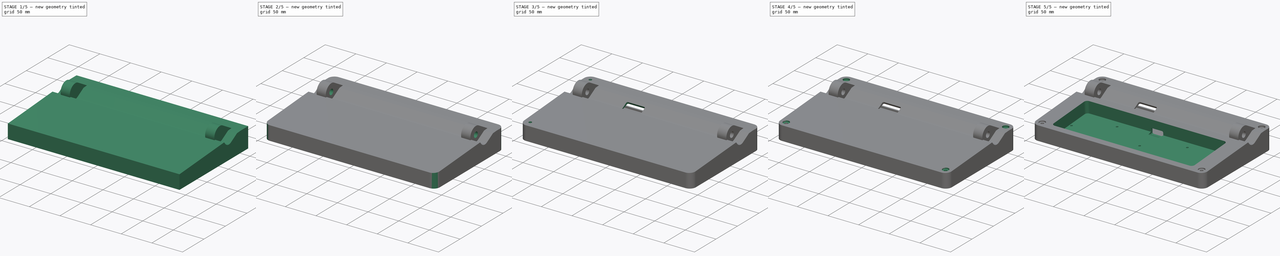
[diagram: build sequence overview — one tinted view per stage of 5, left to right]
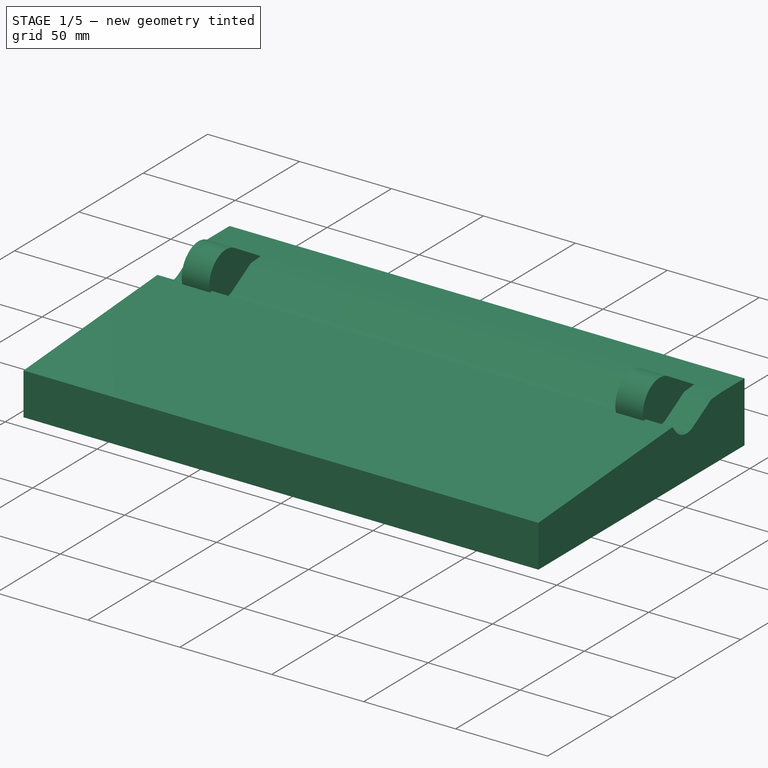
[diagram: stage 1 of 5 — iso view after this stage's code; geometry added in this stage tinted green]
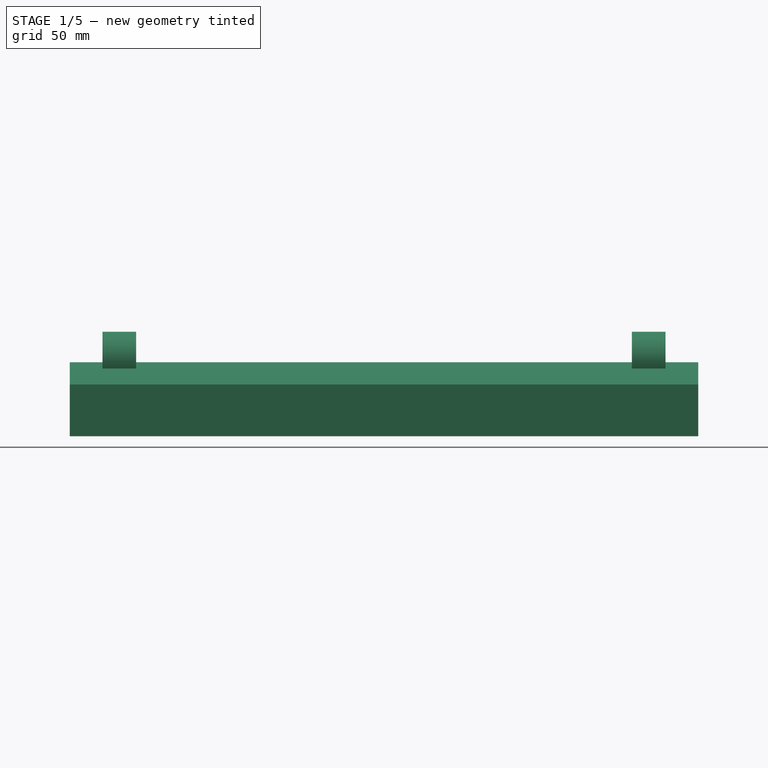
[diagram: stage 1 of 5 — front view after this stage's code; geometry added in this stage tinted green]
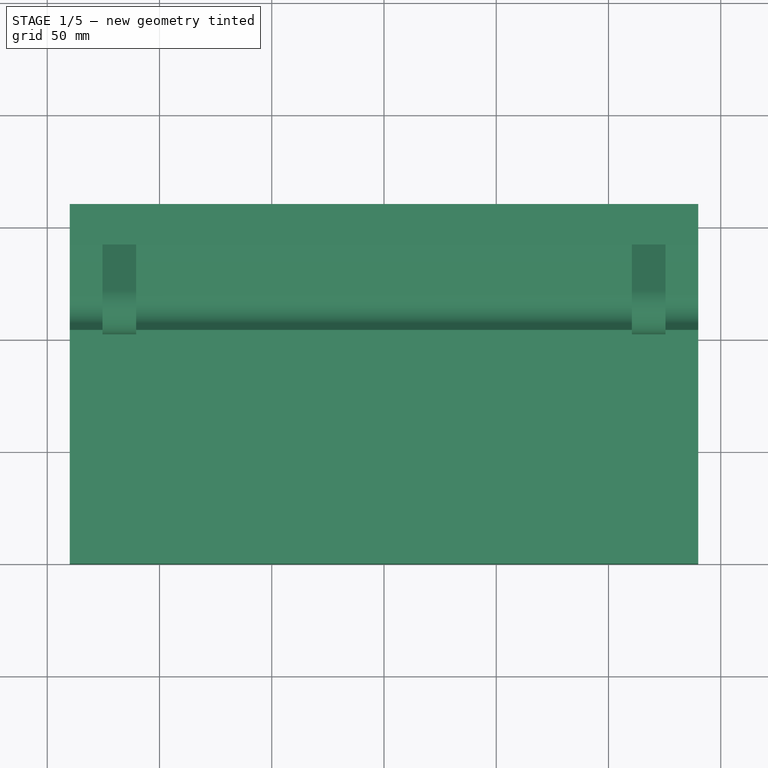
[diagram: stage 1 of 5 — top view after this stage's code; geometry added in this stage tinted green]
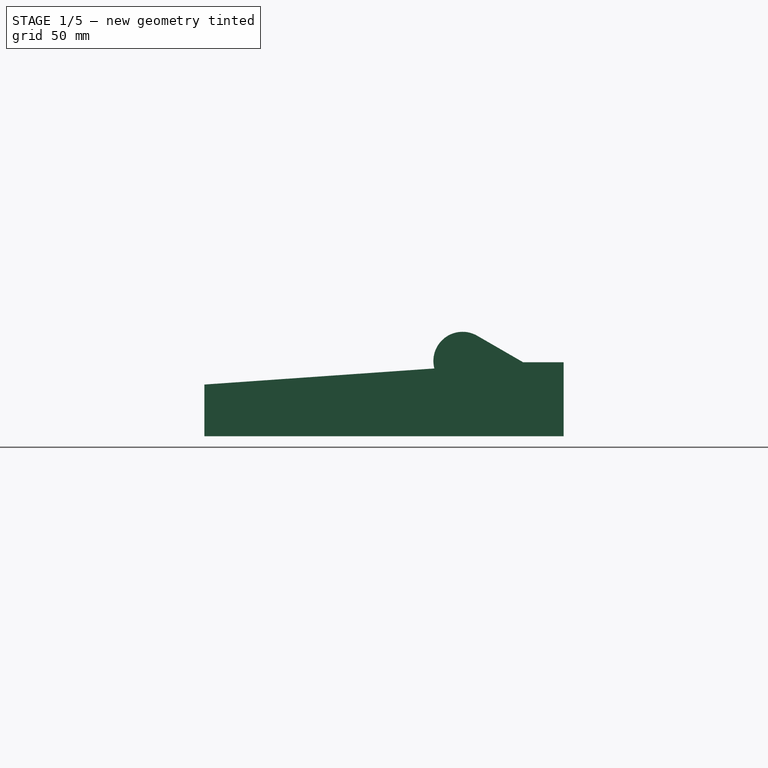
[diagram: stage 1 of 5 — right view after this stage's code; geometry added in this stage tinted green]
FCSTD DOCUMENT  (FreeCAD 1.0R39319 (Git))
Label: BottomEnclosure_base
License: All rights reserved
LicenseURL: https://en.wikipedia.org/wiki/All_rights_reserved
objects: Sketcher::SketchObject×13, PartDesign::SubShapeBinder×13, PartDesign::Pocket×13, PartDesign::Mirrored×3, PartDesign::Pad×2, PartDesign::Fillet×2, PartDesign::Body×2, App::Link×1, PartDesign::Boolean×1, PartDesign::Plane×1, PartDesign::Hole×1
note: 104 computed .brp shape members not serialized (recipe doc carries the construction recipe); baked Part::Feature solids carry a one-line shape summary decoded from their .brp
EXTERNAL_REF file=Spec.FCStd obj=Spreadsheet

FEATURE [App::Link] Link  label="Vars"
  LinkedObject = -> <external Spec.FCStd>#Spreadsheet
FEATURE [Sketcher::SketchObject] Sketch008
  ArcFitTolerance = 1e-06
  AttachmentSupport = -> [YZ_Plane002]
  FullyConstrained = true
  MakeInternals = false
  MapMode = 5
  Placement = pos=(0,0,0) rot=(0.57735,0.57735,0.57735;2.0944rad)
  expr: Constraints[15] = <<Vars>>.hood_angle
  expr: Constraints[16] = <<Vars>>.bottom_enclosure_height
  expr: Constraints[8] = <<Vars>>.top_enclosure_height
  expr: Constraints[9] = <<Vars>>.bottom_enclosure_depth
  sketch-geometry (12):
    g0: LineSegment StartX=-100 StartY=0 StartZ=0 EndX=-100 EndY=23.0073 EndZ=0
    g1: LineSegment StartX=-100 StartY=23.0073 StartZ=0 EndX=0 EndY=30 EndZ=0
    g2: LineSegment StartX=60 StartY=32.9354 StartZ=0 EndX=60 EndY=0 EndZ=0
    g3: LineSegment StartX=60 StartY=0 StartZ=0 EndX=-100 EndY=0 EndZ=0
    g4: LineSegment [constr] StartX=0 StartY=30 StartZ=0 EndX=-100 EndY=30 EndZ=0
    g5: LineSegment [constr] StartX=-100 StartY=30 StartZ=0 EndX=-100 EndY=23.0073 EndZ=0
    g6: LineSegment [constr] StartX=41.9779 StartY=32.9354 StartZ=0 EndX=21.5 EndY=44.7583 EndZ=0
    g7: LineSegment StartX=0 StartY=30 StartZ=0 EndX=41.9779 EndY=32.9354 EndZ=0
    g8: LineSegment StartX=41.9779 StartY=32.9354 StartZ=0 EndX=60 EndY=32.9354 EndZ=0
    g9: Circle CenterX=15 CenterY=33.5 CenterZ=0 NormalX=0 NormalY=0 NormalZ=1 AngleXU=0 Radius=4.5
    g10: Circle CenterX=15 CenterY=33.5 CenterZ=0 NormalX=0 NormalY=0 NormalZ=1 AngleXU=0 Radius=10
    g11: LineSegment [constr] StartX=15 StartY=33.5 StartZ=0 EndX=21.5 EndY=44.7583 EndZ=0
  constraints (33):
    c: PointOnObject(g0,g-1)
    c: Vertical(g0)
    c: Coincident(g0,g1)
    c: PointOnObject(g1,g-2)
    c: PointOnObject(g2,g-1)
    c: Vertical(g2)
    c: Coincident(g2,g3)
    c: Coincident(g3,g0)
    c: DistanceX(g0,g-1) = 100
    c: DistanceY(g0,g1) = 30
    c: Coincident(g1,g4)
    c: Horizontal(g4)
    c: Coincident(g4,g5)
    c: Coincident(g5,g0)
    c: Vertical(g5)
    c: Angle(g4,g1) = 0.0698132
    c: DistanceX(g0,g2) = 160
    c: Angle(g6,g-1) = 0.523599
    c: Coincident(g7,g1)
    c: Coincident(g7,g6)
    c: Coincident(g8,g6)
    c: Coincident(g8,g2)
    c: Horizontal(g8)
    c: Parallel(g1,g7)
    c: DistanceX(g-1,g9) = 15
    c: Diameter(g9) = 9
    c: DistanceY(g-1,g9) = 33.5
    c: Coincident(g10,g9)
    c: Diameter(g10) = 20
    c: Coincident(g11,g9)
    c: Coincident(g6,g11)
    c: Perpendicular(g6,g11)
    c: Distance(g11) = 13
FEATURE [Sketcher::SketchObject] Sketch
  ArcFitTolerance = 1e-06
  AttachmentSupport = -> [YZ_Plane002]
  ExternalGeometry = -> [Sketch008]
  FullyConstrained = true
  MakeInternals = false
  MapMode = 5
  Placement = pos=(0,0,0) rot=(0.57735,0.57735,0.57735;2.0944rad)
  sketch-geometry (6):
    g0: ArcOfCircle CenterX=15 CenterY=33.5 CenterZ=0 NormalX=0 NormalY=0 NormalZ=1 AngleXU=0 Radius=10.5 StartAngle=3.83972 EndAngle=5.23599
    g1: LineSegment StartX=3.99563 StartY=30.2794 StartZ=0 EndX=6.95653 EndY=26.7507 EndZ=0
    g2: LineSegment StartX=20.25 StartY=24.4067 StartZ=0 EndX=34.0635 EndY=32.382 EndZ=0
    g3: LineSegment [constr] StartX=6.95653 StartY=26.7507 StartZ=0 EndX=7.33956 EndY=27.0721 EndZ=0
    g4: LineSegment [constr] StartX=7.33956 StartY=27.0721 StartZ=0 EndX=15 EndY=33.5 EndZ=0
    g5: LineSegment StartX=3.99563 StartY=30.2794 StartZ=0 EndX=34.0635 EndY=32.382 EndZ=0
  constraints (15):
    c: Coincident(g0,g-3)
    c: PointOnObject(g1,g-5)
    c: Coincident(g3,g1)
    c: Coincident(g4,g0)
    c: PointOnObject(g2,g-5)
    c: Angle(g-1,g2) = 0.523599
    c: Tangent(g0,g1) = -1.5708
    c: Tangent(g0,g2) = -1.5708
    c: Coincident(g3,g4)
    c: PointOnObject(g3,g-4)
    c: Parallel(g3,g4)
    c: Coincident(g5,g1)
    c: Coincident(g5,g2)
    c: Angle(g-1,g4) = 0.698132
    c: Distance(g0,g3) = 0.5
FEATURE [Sketcher::SketchObject] Sketch012  label="Sketch013"
  ArcFitTolerance = 1e-06
  AttachmentSupport = -> [YZ_Plane002]
  ExternalGeometry = -> [Sketch,Sketch008]
  FullyConstrained = true
  MakeInternals = false
  MapMode = 5
  Placement = pos=(0,0,0) rot=(0.57735,0.57735,0.57735;2.0944rad)
  sketch-geometry (7):
    g0: ArcOfCircle CenterX=15 CenterY=33.5 CenterZ=0 NormalX=0 NormalY=0 NormalZ=1 AngleXU=0 Radius=13 StartAngle=1.0472 EndAngle=3.40062
    g1: LineSegment StartX=21.5 StartY=44.7583 StartZ=0 EndX=41.9779 EndY=32.9354 EndZ=0
    g2: LineSegment StartX=2.43368 StartY=30.1702 StartZ=0 EndX=3.99563 EndY=30.2794 EndZ=0
    g3: LineSegment StartX=34.0635 StartY=32.382 StartZ=0 EndX=41.9779 EndY=32.9354 EndZ=0
    g4: LineSegment StartX=3.99563 StartY=30.2794 StartZ=0 EndX=6.95653 EndY=26.7507 EndZ=0
    g5: LineSegment StartX=20.25 StartY=24.4067 StartZ=0 EndX=34.0635 EndY=32.382 EndZ=0
    g6: ArcOfCircle CenterX=15 CenterY=33.5 CenterZ=0 NormalX=0 NormalY=0 NormalZ=1 AngleXU=0 Radius=10.5 StartAngle=3.83972 EndAngle=5.23599
  constraints (16):
    c: Diameter(g0) = 26
    c: Coincident(g0,g-3)
    c: Coincident(g1,g-6)
    c: Tangent(g0,g1) = 1.5708
    c: PointOnObject(g0,g-6)
    c: Coincident(g2,g0)
    c: Coincident(g2,g-4)
    c: Coincident(g3,g-5)
    c: Coincident(g3,g1)
    c: Coincident(g4,g2)
    c: Coincident(g4,g-4)
    c: Coincident(g5,g-5)
    c: Coincident(g5,g3)
    c: Coincident(g6,g4)
    c: Coincident(g6,g5)
    c: Tangent(g6,g-3)
FEATURE [Sketcher::SketchObject] Sketch013  label="Sketch014"
  ArcFitTolerance = 1e-06
  AttachmentSupport = -> [XY_Plane002]
  FullyConstrained = true
  MakeInternals = false
  MapMode = 5
  expr: Constraints[10] = <<Vars>>.wire_hole_offset_x
  expr: Constraints[9] = <<Vars>>.wire_hole_width
  sketch-geometry (5):
    g0: LineSegment StartX=-55 StartY=5 StartZ=0 EndX=-25 EndY=5 EndZ=0
    g1: LineSegment StartX=-25 StartY=5 StartZ=0 EndX=-25 EndY=25 EndZ=0
    g2: LineSegment StartX=-25 StartY=25 StartZ=0 EndX=-55 EndY=25 EndZ=0
    g3: LineSegment StartX=-55 StartY=25 StartZ=0 EndX=-55 EndY=5 EndZ=0
    g4: GeomPoint [constr] X=-40 Y=15 Z=0
  constraints (13):
    c: Coincident(g0,g1)
    c: Coincident(g1,g2)
    c: Coincident(g2,g3)
    c: Coincident(g3,g0)
    c: Horizontal(g0)
    c: Horizontal(g2)
    c: Vertical(g1)
    c: Vertical(g3)
    c: Symmetric(g2,g0,g4)
    c: DistanceX(g2,g2) = 30
    c: DistanceX(g4,g-1) = 40
    c: DistanceY(g-1,g4) = 15
    c: DistanceY(g3,g3) = 20
FEATURE [PartDesign::SubShapeBinder] Binder014
  BindCopyOnChange = 0
  BindMode = 0
  ClaimChildren = false
  Context = -> Body002 [Binder014.]
  Fuse = false
  MakeFace = true
  OffsetFill = false
  OffsetIntersection = false
  OffsetJoinType = 0
  OffsetOpenResult = false
  PartialLoad = false
  Refine = true
  Relative = true
  Support = -> [Sketch008[Edge2,Edge3,Edge4,Edge5,Edge6,Edge1]]
  _Version = 2
FEATURE [PartDesign::Pad] Pad001
  Direction = (1,0,0)
  Length = 280
  Length2 = 10
  Midplane = true
  Profile = -> Binder014
  Refine = true
  Suppressed = false
  Type = 0
  expr: Length = <<Vars>>.top_enclosure_width
FEATURE [Sketcher::SketchObject] Sketch014  label="Sketch015"
  ArcFitTolerance = 1e-06
  AttachmentSupport = -> [YZ_Plane002]
  FullyConstrained = true
  MakeInternals = false
  MapMode = 5
  Placement = pos=(0,0,0) rot=(0.57735,0.57735,0.57735;2.0944rad)
FEATURE [PartDesign::Pocket] Pocket
  BaseFeature = -> Pad001
  Direction = (-1,0,0)
  Length = 5
  Length2 = 5
  Midplane = true
  Profile = -> Sketch
  ReferenceAxis = -> Sketch [N_Axis]
  Refine = true
  Suppressed = false
  Type = 1
FEATURE [PartDesign::SubShapeBinder] Binder
  BindCopyOnChange = 0
  BindMode = 0
  ClaimChildren = false
  Context = -> Body002 [Binder.]
  Fuse = false
  MakeFace = true
  OffsetFill = false
  OffsetIntersection = false
  OffsetJoinType = 0
  OffsetOpenResult = false
  PartialLoad = false
  Placement = pos=(110.4,0,0) rot=(0,0,1;0rad)
  Refine = true
  Relative = true
  Support = -> [Sketch012]
  _Version = 2
  expr: .Placement.Base.x = (<<Vars>>.top_enclosure_width - 32 * 2) / 2 + 2.4
FEATURE [PartDesign::Pad] Pad
  BaseFeature = -> Pocket
  Direction = (1,0,0)
  Length = 15
  Length2 = 10
  Profile = -> Binder
  Refine = true
  Suppressed = false
  Type = 0
FEATURE [PartDesign::Mirrored] Mirrored
  BaseFeature = -> Pad
  MirrorPlane = -> YZ_Plane002
  Originals = -> [Pad]
  Refine = true
  Suppressed = false
  TransformMode = 0
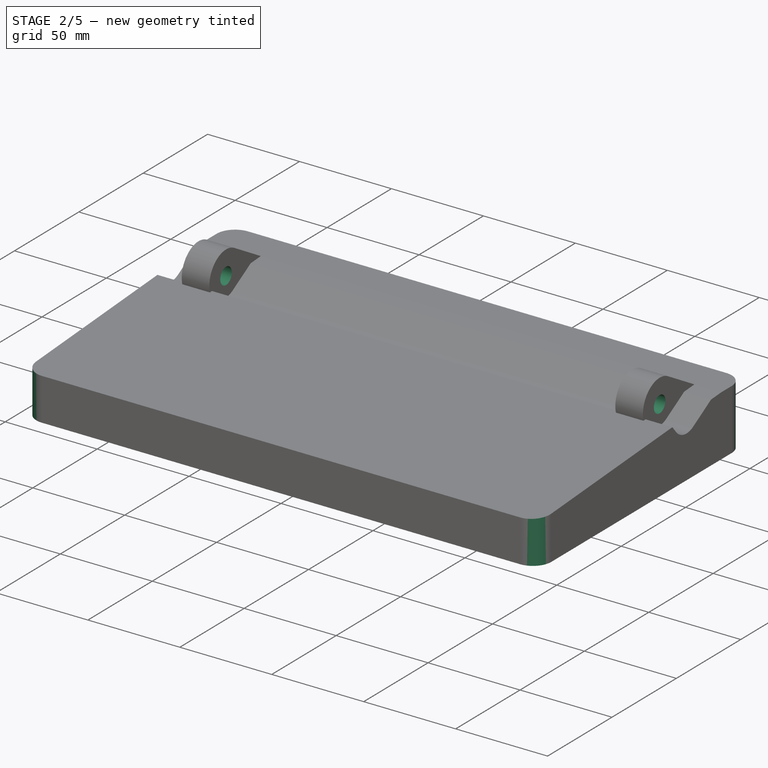
[diagram: stage 2 of 5 — iso view after this stage's code; geometry added in this stage tinted green]
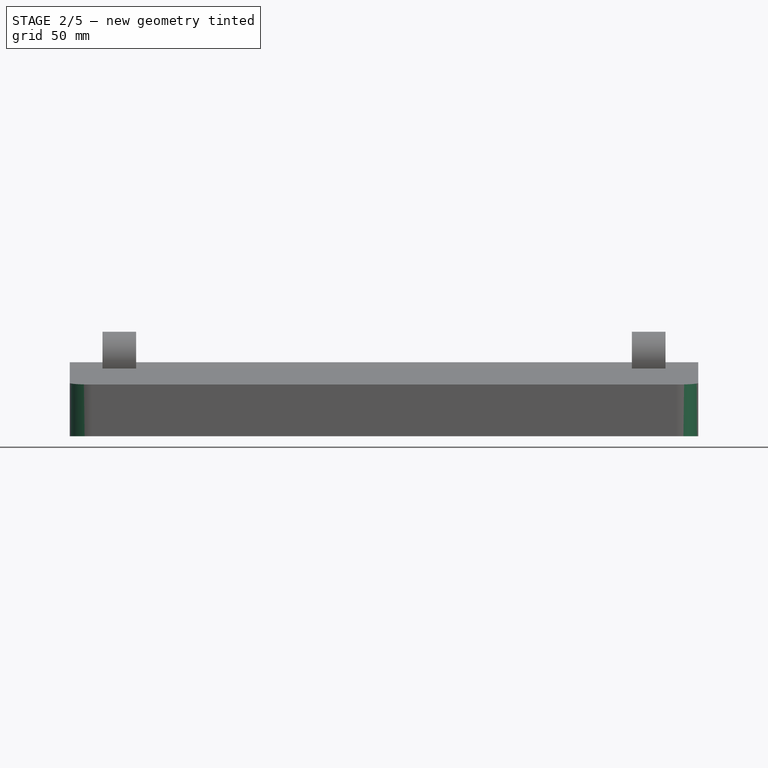
[diagram: stage 2 of 5 — front view after this stage's code; geometry added in this stage tinted green]
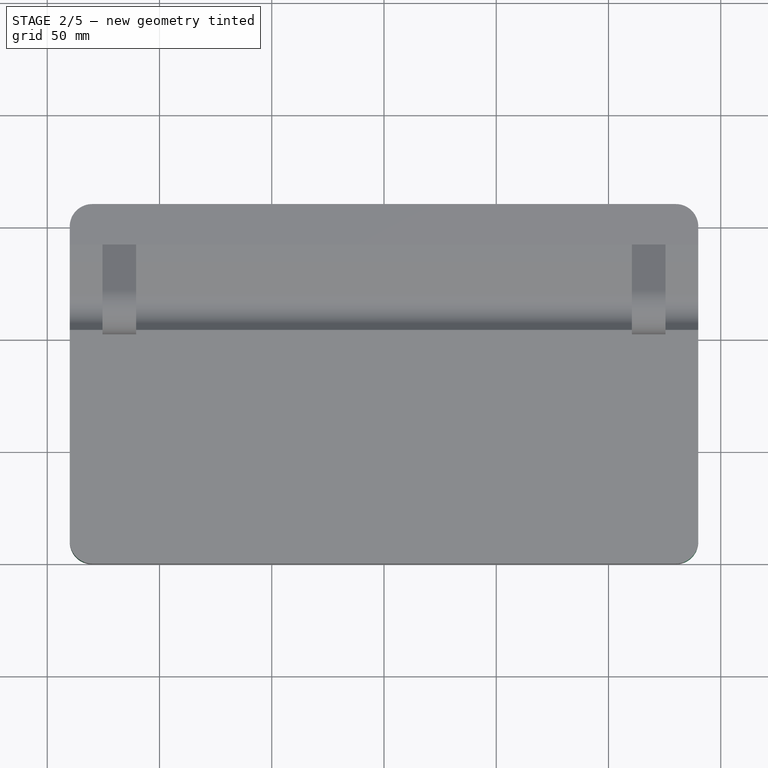
[diagram: stage 2 of 5 — top view after this stage's code; geometry added in this stage tinted green]
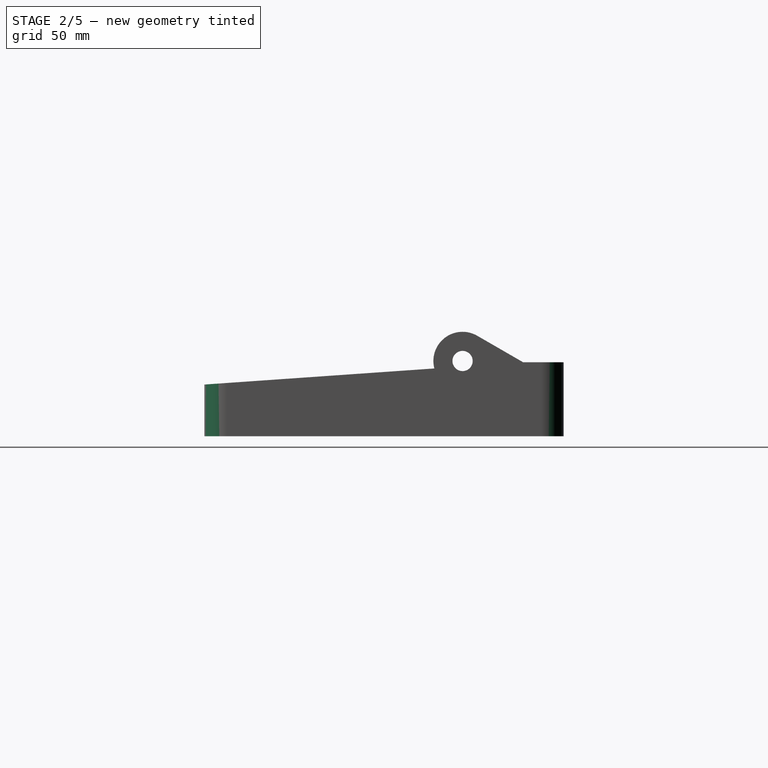
[diagram: stage 2 of 5 — right view after this stage's code; geometry added in this stage tinted green]
FEATURE [PartDesign::SubShapeBinder] Binder015
  BindCopyOnChange = 0
  BindMode = 0
  ClaimChildren = false
  Context = -> Body002 [Binder015.]
  Fuse = false
  MakeFace = true
  OffsetFill = false
  OffsetIntersection = false
  OffsetJoinType = 0
  OffsetOpenResult = false
  PartialLoad = false
  Refine = true
  Relative = true
  Support = -> [Sketch008[Edge7]]
  _Version = 2
FEATURE [PartDesign::Pocket] Pocket001
  BaseFeature = -> Mirrored
  Direction = (-1,0,0)
  Length = 5
  Length2 = 5
  Midplane = true
  Profile = -> Binder015
  Refine = true
  Suppressed = false
  Type = 1
FEATURE [Sketcher::SketchObject] Sketch015  label="Sketch016"
  ArcFitTolerance = 1e-06
  AttachmentSupport = -> [YZ_Plane002]
  ExternalGeometry = -> [Pocket001]
  FullyConstrained = true
  MakeInternals = false
  MapMode = 5
  Placement = pos=(0,0,0) rot=(0.57735,0.57735,0.57735;2.0944rad)
  expr: Constraints[10] = <<Vars>>.wall
  expr: Constraints[12] = <<Vars>>.wall
  expr: Constraints[16] = <<Vars>>.wall
  expr: Constraints[9] = <<Vars>>.wall
  sketch-geometry (6):
    g0: LineSegment StartX=-4.5 StartY=21.9067 StartZ=0 EndX=-4.5 EndY=2.5 EndZ=0
    g1: LineSegment StartX=-4.5 StartY=2.5 StartZ=0 EndX=57.5 EndY=2.5 EndZ=0
    g2: LineSegment StartX=57.5 StartY=2.5 StartZ=0 EndX=57.5 EndY=30.4354 EndZ=0
    g3: LineSegment StartX=20.25 StartY=21.9067 StartZ=0 EndX=-4.5 EndY=21.9067 EndZ=0
    g4: LineSegment StartX=57.5 StartY=30.4354 StartZ=0 EndX=41.9779 EndY=30.4354 EndZ=0
    g5: LineSegment StartX=41.9779 StartY=30.4354 StartZ=0 EndX=20.25 EndY=21.9067 EndZ=0
  constraints (18):
    c: Coincident(g0,g1)
    c: Coincident(g1,g2)
    c: Coincident(g2,g4)
    c: Coincident(g3,g0)
    c: Vertical(g0)
    c: Vertical(g2)
    c: Horizontal(g1)
    c: Coincident(g5,g3)
    c: Coincident(g4,g5)
    c: DistanceX(g2,g-7) = 2.5
    c: DistanceY(g2,g-7) = 2.5
    c: Horizontal(g4)
    c: DistanceY(g-8,g1) = 2.5
    c: Vertical(g4,g-6)
    c: Vertical(g3,g-5)
    c: Horizontal(g3)
    c: DistanceY(g3,g-5) = 2.5
    c: DistanceX(g1,g1) = 62
FEATURE [PartDesign::SubShapeBinder] Binder016
  BindCopyOnChange = 0
  BindMode = 0
  ClaimChildren = false
  Context = -> Body002 [Binder016.]
  Fuse = false
  MakeFace = true
  OffsetFill = false
  OffsetIntersection = false
  OffsetJoinType = 0
  OffsetOpenResult = false
  PartialLoad = false
  Refine = true
  Relative = true
  Support = -> [Sketch015]
  _Version = 2
FEATURE [PartDesign::Pocket] Pocket002
  BaseFeature = -> Pocket001
  Direction = (-1,0,0)
  Length = 233
  Length2 = 5
  Midplane = true
  Profile = -> Binder016
  Refine = true
  Suppressed = false
  Type = 0
  expr: Length = <<Vars>>.keyboard_plate_width
FEATURE [PartDesign::Fillet] Fillet
  Base = -> Pocket002 [Edge25,Edge26,Edge27,Edge33]
  BaseFeature = -> Pocket002
  Radius = 10
  Refine = true
  SupportTransform = false
  Suppressed = false
  UseAllEdges = false
  expr: Radius = <<Vars>>.ext_radius
FEATURE [Sketcher::SketchObject] Sketch016  label="Sketch017"
  ArcFitTolerance = 1e-06
  AttachmentSupport = -> [Fillet]
  ExternalGeometry = -> [Fillet]
  FullyConstrained = true
  MakeInternals = false
  MapMode = 5
  Placement = pos=(0,60,0) rot=(0,0.707107,0.707107;3.14159rad)
  expr: Constraints[27] = <<Vars>>.ext_radius / 2
  expr: Constraints[6] = <<Vars>>.wall
  expr: Constraints[7] = <<Vars>>.wall
  sketch-geometry (12):
    g0: LineSegment StartX=-116.5 StartY=22.9354 StartZ=0 EndX=-116.5 EndY=10 EndZ=0
    g1: LineSegment StartX=-111.5 StartY=5 StartZ=0 EndX=111.5 EndY=5 EndZ=0
    g2: LineSegment StartX=116.5 StartY=10 StartZ=0 EndX=116.5 EndY=22.9354 EndZ=0
    g3: LineSegment StartX=111.5 StartY=27.9354 StartZ=0 EndX=-111.5 EndY=27.9354 EndZ=0
    g4: ArcOfCircle CenterX=111.5 CenterY=22.9354 CenterZ=0 NormalX=0 NormalY=0 NormalZ=1 AngleXU=0 Radius=5 StartAngle=0 EndAngle=1.5708
    g5: GeomPoint [constr] X=116.5 Y=27.9354 Z=0
    g6: ArcOfCircle CenterX=111.5 CenterY=10 CenterZ=0 NormalX=0 NormalY=0 NormalZ=1 AngleXU=0 Radius=5 StartAngle=4.71239 EndAngle=6.28319
    g7: GeomPoint [constr] X=116.5 Y=5 Z=0
    g8: ArcOfCircle CenterX=-111.5 CenterY=22.9354 CenterZ=0 NormalX=0 NormalY=0 NormalZ=1 AngleXU=0 Radius=5 StartAngle=1.5708 EndAngle=3.14159
    g9: GeomPoint [constr] X=-116.5 Y=27.9354 Z=0
    g10: ArcOfCircle CenterX=-111.5 CenterY=10 CenterZ=0 NormalX=0 NormalY=0 NormalZ=1 AngleXU=0 Radius=5 StartAngle=3.14159 EndAngle=4.71239
    g11: GeomPoint [constr] X=-116.5 Y=5 Z=0
  constraints (28):
    c: Vertical(g0)
    c: Vertical(g2)
    c: Horizontal(g1)
    c: Horizontal(g3)
    c: PointOnObject(g9,g-3)
    c: PointOnObject(g7,g-4)
    c: DistanceY(g-4,g7) = 2.5
    c: DistanceY(g5,g-4) = 2.5
    c: PointOnObject(g5,g2)
    c: PointOnObject(g5,g3)
    c: Tangent(g2,g4) = -1.5708
    c: Tangent(g3,g4) = -1.5708
    c: PointOnObject(g7,g1)
    c: PointOnObject(g7,g2)
    c: Tangent(g1,g6) = -1.5708
    c: Tangent(g2,g6) = -1.5708
    c: PointOnObject(g9,g0)
    c: PointOnObject(g9,g3)
    c: Tangent(g0,g8) = -1.5708
    c: Tangent(g3,g8) = -1.5708
    c: PointOnObject(g11,g0)
    c: PointOnObject(g11,g1)
    c: Tangent(g0,g10) = -1.5708
    c: Tangent(g1,g10) = -1.5708
    c: Equal(g6,g4)
    c: Equal(g4,g8)
    c: Equal(g8,g10)
    c: Radius(g10) = 5
FEATURE [PartDesign::Pocket] Pocket003
  BaseFeature = -> Fillet
  Direction = (0,-1,2e-16)
  Length = 5
  Length2 = 5
  Profile = -> Sketch016
  ReferenceAxis = -> Sketch016 [N_Axis]
  Refine = true
  Suppressed = false
  Type = 2
FEATURE [Sketcher::SketchObject] Sketch017  label="Sketch018"
  ArcFitTolerance = 1e-06
  AttachmentSupport = -> [Pocket002]
  ExternalGeometry = -> [Pocket002]
  FullyConstrained = true
  MakeInternals = false
  MapMode = 5
  Placement = pos=(0,60,0) rot=(0,0.707107,0.707107;3.14159rad)
  sketch-geometry (4):
    g0: LineSegment StartX=-118.5 StartY=30.4354 StartZ=0 EndX=-118.5 EndY=2.5 EndZ=0
    g1: LineSegment StartX=-118.5 StartY=2.5 StartZ=0 EndX=118.5 EndY=2.5 EndZ=0
    g2: LineSegment StartX=118.5 StartY=2.5 StartZ=0 EndX=118.5 EndY=30.4354 EndZ=0
    g3: LineSegment StartX=118.5 StartY=30.4354 StartZ=0 EndX=-118.5 EndY=30.4354 EndZ=0
  constraints (12):
    c: Coincident(g0,g1)
    c: Coincident(g1,g2)
    c: Coincident(g2,g3)
    c: Coincident(g3,g0)
    c: Vertical(g0)
    c: Vertical(g2)
    c: Horizontal(g1)
    c: Horizontal(g3)
    c: PointOnObject(g-3,g3)
    c: PointOnObject(g-3,g1)
    c: DistanceX(g-4,g2) = 2
    c: DistanceX(g0,g-3) = 2
FEATURE [PartDesign::SubShapeBinder] Binder017
  BindCopyOnChange = 0
  BindMode = 0
  ClaimChildren = false
  Context = -> Body002 [Binder017.]
  Fuse = false
  MakeFace = true
  OffsetFill = false
  OffsetIntersection = false
  OffsetJoinType = 0
  OffsetOpenResult = false
  PartialLoad = false
  Placement = pos=(0,-2.5,0) rot=(0,0,1;0rad)
  Refine = true
  Relative = true
  Support = -> [Sketch017]
  _Version = 2
  expr: .Placement.Base.y = -<<Vars>>.wall
FEATURE [PartDesign::Pocket] Pocket004
  BaseFeature = -> Pocket003
  Direction = (0,-1,3e-16)
  Length = 2.7
  Length2 = 5
  Profile = -> Binder017
  Refine = true
  Suppressed = false
  Type = 0
  expr: Length = <<Vars>>.wall + <<Vars>>.clearance
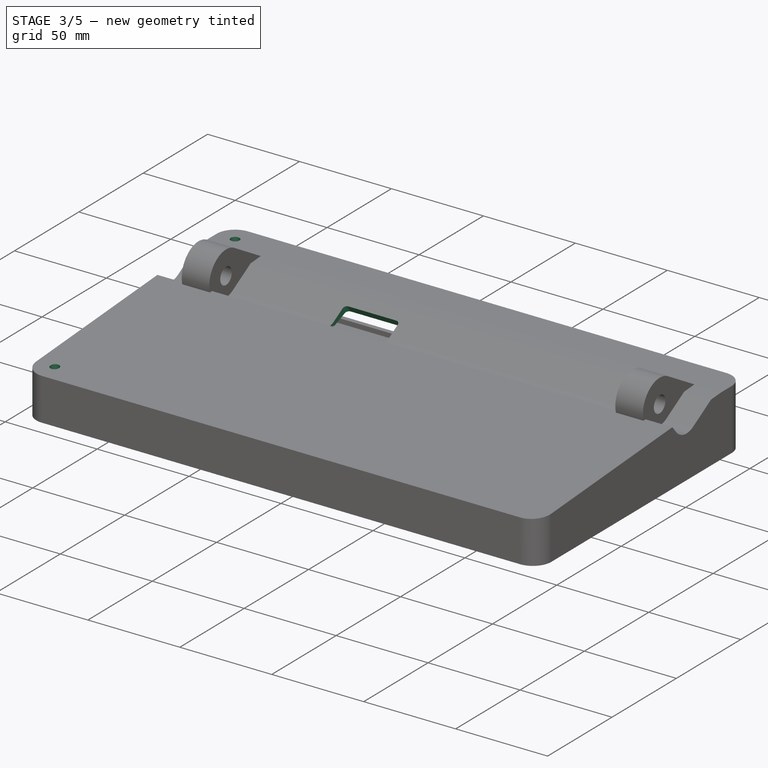
[diagram: stage 3 of 5 — iso view after this stage's code; geometry added in this stage tinted green]
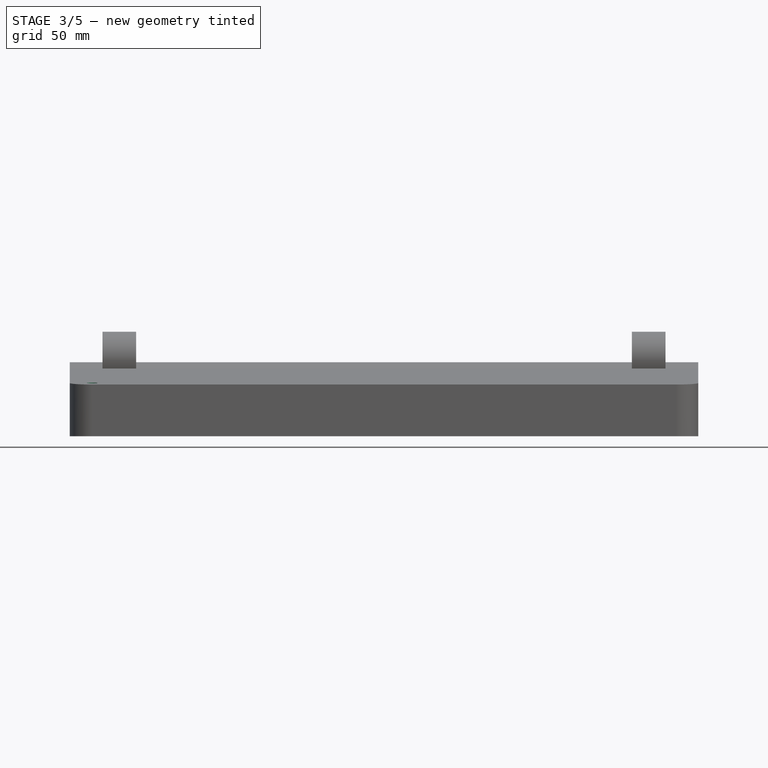
[diagram: stage 3 of 5 — front view after this stage's code; geometry added in this stage tinted green]
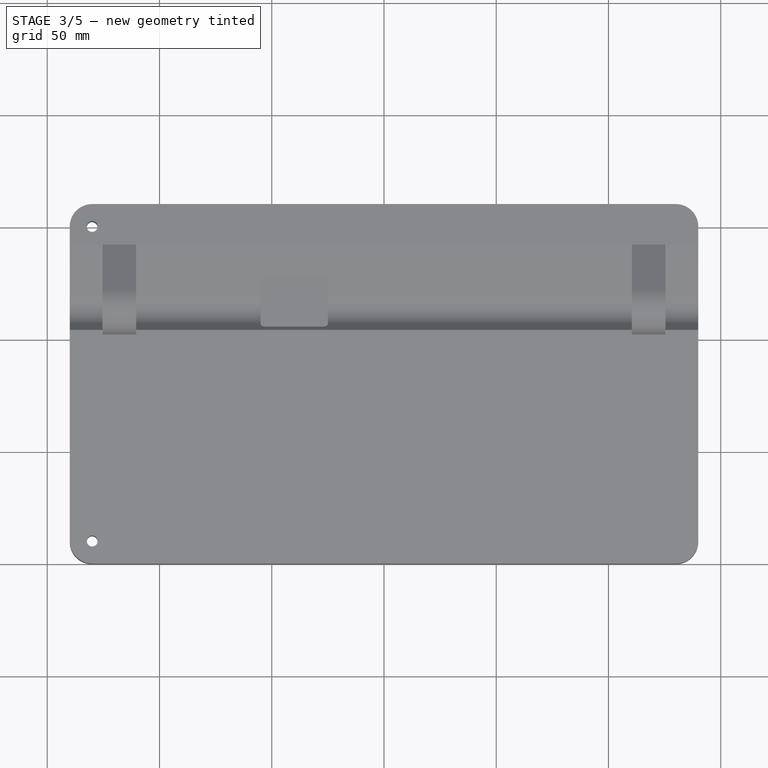
[diagram: stage 3 of 5 — top view after this stage's code; geometry added in this stage tinted green]
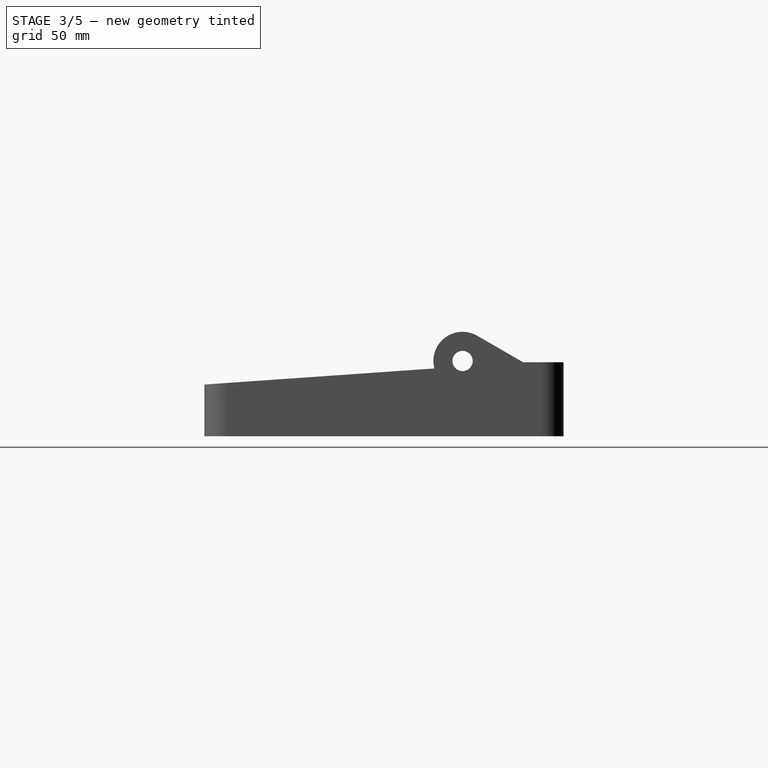
[diagram: stage 3 of 5 — right view after this stage's code; geometry added in this stage tinted green]
FEATURE [PartDesign::Body] Body  label="Bottom Enclosure - AIR40"
  AllowCompound = false
  Group = -> [Boolean,DatumPlane,Sketch018,Binder019,Pocket005,Sketch019,Hole,Sketch020,Binder020,Pocket006,Pocket007]
  Origin = -> Origin
  Tip = -> Pocket007
FEATURE [Sketcher::SketchObject] Sketch021  label="Sketch022"
  ArcFitTolerance = 1e-06
  AttachmentSupport = -> [YZ_Plane002]
  ExternalGeometry = -> [Pocket004]
  FullyConstrained = true
  MakeInternals = false
  MapMode = 5
  Placement = pos=(0,0,0) rot=(0.57735,0.57735,0.57735;2.0944rad)
  sketch-geometry (5):
    g0: LineSegment StartX=9.82811 StartY=33.2121 StartZ=0 EndX=25.5013 EndY=33.2121 EndZ=0
    g1: LineSegment StartX=25.5013 StartY=33.2121 StartZ=0 EndX=33.1831 EndY=19.9067 EndZ=0
    g2: LineSegment StartX=33.1831 StartY=19.9067 StartZ=0 EndX=-2.5 EndY=19.9067 EndZ=0
    g3: LineSegment StartX=-2.5 StartY=19.9067 StartZ=0 EndX=9.82811 EndY=33.2121 EndZ=0
    g4: GeomPoint X=5.47608 Y=28.5151 Z=0
  constraints (13):
    c: Horizontal(g0)
    c: Coincident(g1,g0)
    c: Coincident(g1,g2)
    c: Horizontal(g2)
    c: Coincident(g3,g2)
    c: Coincident(g3,g0)
    c: DistanceX(g-4,g2) = 2
    c: DistanceY(g1,g-4) = 2
    c: Perpendicular(g-5,g1)
    c: Distance(g-5,g1) = 7
    c: Distance(g0,g-5) = 5
    c: Symmetric(g-6,g-6,g4)
    c: PointOnObject(g4,g3)
FEATURE [PartDesign::SubShapeBinder] Binder021
  BindCopyOnChange = 0
  BindMode = 0
  ClaimChildren = false
  Context = -> Body002 [Binder021.]
  Fuse = false
  MakeFace = true
  OffsetFill = false
  OffsetIntersection = false
  OffsetJoinType = 0
  OffsetOpenResult = false
  PartialLoad = false
  Placement = pos=(-40,0,0) rot=(0,0,1;0rad)
  Refine = true
  Relative = true
  Support = -> [Sketch021]
  _Version = 2
  expr: .Placement.Base.x = -<<Vars>>.wire_hole_offset_x
FEATURE [PartDesign::Pocket] Pocket008
  BaseFeature = -> Pocket004
  Direction = (-1,0,0)
  Length = 30
  Length2 = 5
  Midplane = true
  Profile = -> Binder021
  Refine = true
  Suppressed = false
  Type = 0
  expr: Length = <<Vars>>.wire_hole_width
FEATURE [PartDesign::Fillet] Fillet001
  Base = -> Pocket008 [Edge33,Edge32,Edge39,Edge34]
  BaseFeature = -> Pocket008
  Radius = 2
  Refine = true
  SupportTransform = false
  Suppressed = false
  UseAllEdges = false
FEATURE [Sketcher::SketchObject] Sketch022  label="Sketch023"
  ArcFitTolerance = 1e-06
  AttachmentSupport = -> [XY_Plane002]
  ExternalGeometry = -> [Fillet001]
  FullyConstrained = true
  MakeInternals = false
  MapMode = 5
  sketch-geometry (18):
    g0: Circle CenterX=-130 CenterY=50 CenterZ=0 NormalX=0 NormalY=0 NormalZ=1 AngleXU=0 Radius=2.4
    g1: Circle CenterX=-130 CenterY=-90 CenterZ=0 NormalX=0 NormalY=0 NormalZ=1 AngleXU=0 Radius=2.4
    g2: LineSegment StartX=-125.959 StartY=50 StartZ=0 EndX=-127.979 EndY=53.5 EndZ=0
    g3: LineSegment StartX=-127.979 StartY=53.5 StartZ=0 EndX=-132.021 EndY=53.5 EndZ=0
    g4: LineSegment StartX=-132.021 StartY=53.5 StartZ=0 EndX=-134.041 EndY=50 EndZ=0
    g5: LineSegment StartX=-134.041 StartY=50 StartZ=0 EndX=-132.021 EndY=46.5 EndZ=0
    g6: LineSegment StartX=-132.021 StartY=46.5 StartZ=0 EndX=-127.979 EndY=46.5 EndZ=0
    g7: LineSegment StartX=-127.979 StartY=46.5 StartZ=0 EndX=-125.959 EndY=50 EndZ=0
    g8: Circle [constr] CenterX=-130 CenterY=50 CenterZ=0 NormalX=0 NormalY=0 NormalZ=1 AngleXU=0 Radius=4.04145
    g9: LineSegment StartX=-127.979 StartY=-86.5 StartZ=0 EndX=-132.021 EndY=-86.5 EndZ=0
    g10: LineSegment StartX=-132.021 StartY=-86.5 StartZ=0 EndX=-134.041 EndY=-90 EndZ=0
    g11: LineSegment StartX=-134.041 StartY=-90 StartZ=0 EndX=-132.021 EndY=-93.5 EndZ=0
    g12: LineSegment StartX=-132.021 StartY=-93.5 StartZ=0 EndX=-127.979 EndY=-93.5 EndZ=0
    g13: LineSegment StartX=-127.979 StartY=-93.5 StartZ=0 EndX=-125.959 EndY=-90 EndZ=0
    g14: LineSegment StartX=-125.959 StartY=-90 StartZ=0 EndX=-127.979 EndY=-86.5 EndZ=0
    g15: Circle [constr] CenterX=-130 CenterY=-90 CenterZ=0 NormalX=0 NormalY=0 NormalZ=1 AngleXU=0 Radius=4.04145
    g16: Circle CenterX=-130 CenterY=50 CenterZ=0 NormalX=0 NormalY=0 NormalZ=1 AngleXU=0 Radius=5
    g17: Circle CenterX=-130 CenterY=-90 CenterZ=0 NormalX=0 NormalY=0 NormalZ=1 AngleXU=0 Radius=5
  constraints (40):
    c: Coincident(g0,g-3)
    c: Coincident(g1,g-4)
    c: Equal(g1,g0)
    c: Diameter(g1) = 4.8
    c: Coincident(g2,g3)
    c: Coincident(g3,g4)
    c: Coincident(g4,g5)
    c: Coincident(g5,g6)
    c: Coincident(g6,g7)
    c: Coincident(g7,g2)
    c: Equal(g2, g3-g7) x5
    c: PointOnObject(g2,g8)
    c: PointOnObject(g3,g8)
    c: PointOnObject(g4,g8)
    c: PointOnObject(g5,g8)
    c: PointOnObject(g6,g8)
    c: PointOnObject(g7,g8)
    c: Coincident(g8,g0)
    c: Horizontal(g3)
    c: Coincident(g9,g10)
    c: Coincident(g10,g11)
    c: Coincident(g11,g12)
    c: Coincident(g12,g13)
    c: Coincident(g13,g14)
    c: Coincident(g14,g9)
    c: Equal(g9, g10-g14) x5
    c: PointOnObject(g9,g15)
    c: PointOnObject(g10,g15)
    c: PointOnObject(g11,g15)
    c: PointOnObject(g12,g15)
    c: PointOnObject(g13,g15)
    c: PointOnObject(g14,g15)
    c: Coincident(g15,g1)
    c: Horizontal(g9)
    c: Equal(g15,g8)
    c: DistanceY(g6,g2) = 7
    c: Coincident(g16,g0)
    c: Diameter(g16) = 10
    c: Coincident(g17,g1)
    c: Diameter(g17) = 10
FEATURE [PartDesign::SubShapeBinder] Binder022
  BindCopyOnChange = 0
  BindMode = 0
  ClaimChildren = false
  Context = -> Body002 [Binder022.]
  Fuse = false
  MakeFace = true
  OffsetFill = false
  OffsetIntersection = false
  OffsetJoinType = 0
  OffsetOpenResult = false
  PartialLoad = false
  Refine = true
  Relative = true
  Support = -> [Sketch022[Edge1,Edge2]]
  _Version = 2
FEATURE [PartDesign::Pocket] Pocket009
  BaseFeature = -> Fillet001
  Direction = (0,0,-1)
  Length = 5
  Length2 = 5
  Profile = -> Binder022
  Refine = true
  Reversed = true
  Suppressed = false
  Type = 1
FEATURE [PartDesign::SubShapeBinder] Binder023
  BindCopyOnChange = 0
  BindMode = 0
  ClaimChildren = false
  Context = -> Body002 [Binder023.]
  Fuse = false
  MakeFace = true
  OffsetFill = false
  OffsetIntersection = false
  OffsetJoinType = 0
  OffsetOpenResult = false
  PartialLoad = false
  Refine = true
  Relative = true
  Support = -> [Sketch022[Edge9,Edge14,Edge13,Edge12,Edge11,Edge10,Edge7,Edge8]]
  _Version = 2
FEATURE [PartDesign::Pocket] Pocket010
  BaseFeature = -> Pocket009
  Direction = (0,0,-1)
  Length = 5
  Length2 = 5
  Profile = -> Binder023
  Refine = true
  Reversed = true
  Suppressed = false
  Type = 0
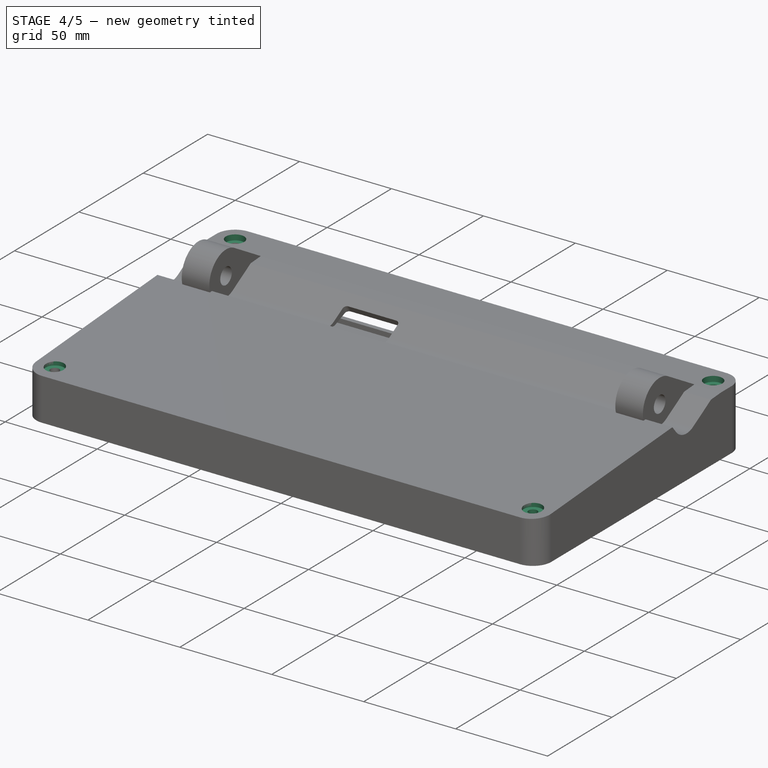
[diagram: stage 4 of 5 — iso view after this stage's code; geometry added in this stage tinted green]
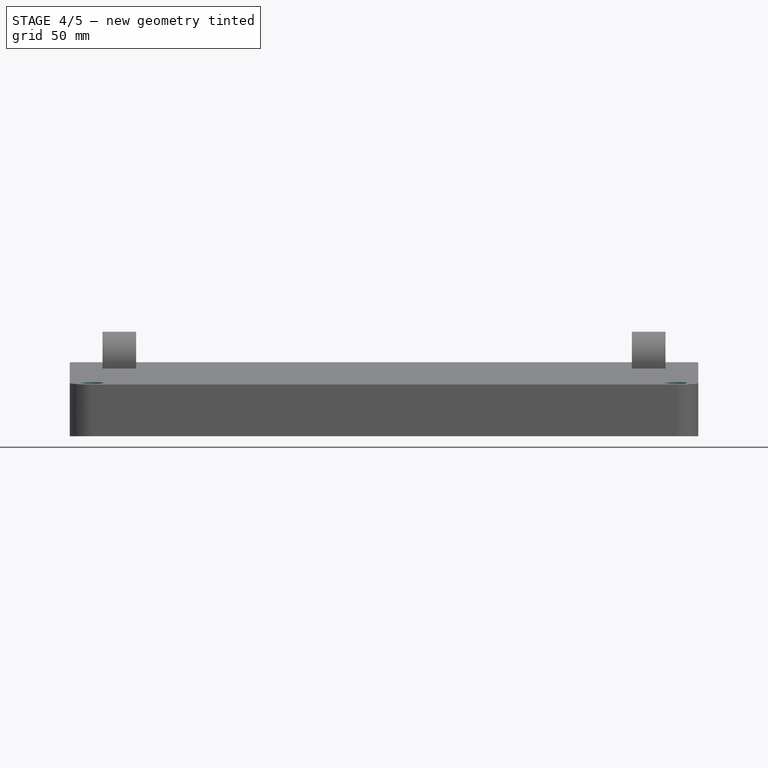
[diagram: stage 4 of 5 — front view after this stage's code; geometry added in this stage tinted green]
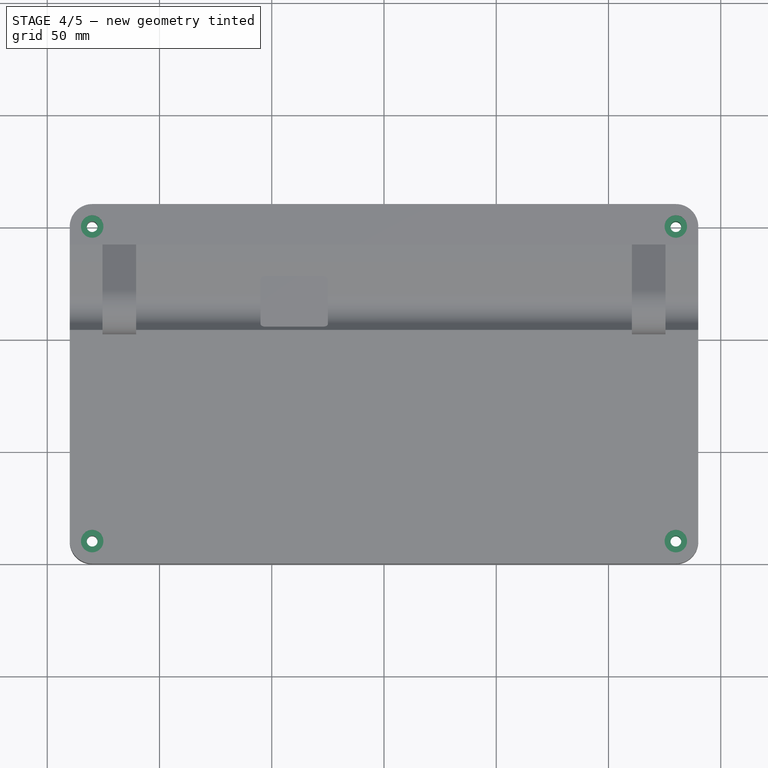
[diagram: stage 4 of 5 — top view after this stage's code; geometry added in this stage tinted green]
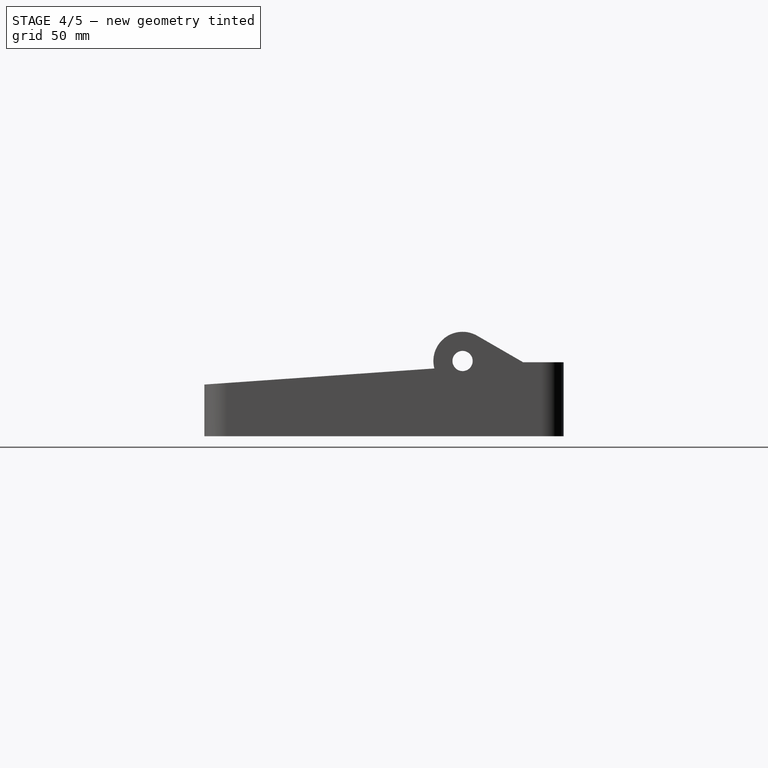
[diagram: stage 4 of 5 — right view after this stage's code; geometry added in this stage tinted green]
FEATURE [PartDesign::SubShapeBinder] Binder018
  BindCopyOnChange = 0
  BindMode = 0
  ClaimChildren = false
  Context = -> Body [Binder018.]
  Fuse = false
  MakeFace = true
  OffsetFill = false
  OffsetIntersection = false
  OffsetJoinType = 0
  OffsetOpenResult = false
  PartialLoad = false
  Refine = true
  Relative = true
  Support = -> [Body002]
  _Version = 2
FEATURE [PartDesign::Boolean] Boolean
  Group = -> [Binder018]
  Refine = true
  Suppressed = false
  Type = 0
  UsePlacement = true
FEATURE [PartDesign::Mirrored] Mirrored001
  BaseFeature = -> Pocket010
  MirrorPlane = -> YZ_Plane002
  Originals = -> [Pocket010,Pocket009]
  Refine = true
  Suppressed = false
  TransformMode = 0
FEATURE [PartDesign::SubShapeBinder] Binder024
  BindCopyOnChange = 0
  BindMode = 0
  ClaimChildren = false
  Context = -> Body002 [Binder024.]
  Fuse = false
  MakeFace = true
  OffsetFill = false
  OffsetIntersection = false
  OffsetJoinType = 0
  OffsetOpenResult = false
  PartialLoad = false
  Placement = pos=(0,0,22) rot=(0,0,1;0rad)
  Refine = true
  Relative = true
  Support = -> [Sketch022[Edge16]]
  _Version = 2
FEATURE [PartDesign::SubShapeBinder] Binder025
  BindCopyOnChange = 0
  BindMode = 0
  ClaimChildren = false
  Context = -> Body002 [Binder025.]
  Fuse = false
  MakeFace = true
  OffsetFill = false
  OffsetIntersection = false
  OffsetJoinType = 0
  OffsetOpenResult = false
  PartialLoad = false
  Placement = pos=(0,0,30) rot=(0,0,1;0rad)
  Refine = true
  Relative = true
  Support = -> [Sketch022[Edge15]]
  _Version = 2
FEATURE [PartDesign::Pocket] Pocket011
  BaseFeature = -> Mirrored001
  Direction = (0,0,-1)
  Length = 5
  Length2 = 5
  Profile = -> Binder024
  Refine = true
  Reversed = true
  Suppressed = false
  Type = 1
FEATURE [PartDesign::Pocket] Pocket012
  BaseFeature = -> Pocket011
  Direction = (0,0,-1)
  Length = 5
  Length2 = 5
  Profile = -> Binder025
  Refine = true
  Reversed = true
  Suppressed = false
  Type = 1
FEATURE [PartDesign::Mirrored] Mirrored002
  BaseFeature = -> Pocket012
  MirrorPlane = -> YZ_Plane002
  Originals = -> [Pocket011,Pocket012]
  Refine = true
  Suppressed = false
  TransformMode = 0
FEATURE [PartDesign::Body] Body002  label="Bottom Enclosure - Base"
  AllowCompound = false
  Group = -> [Sketch008,Sketch,Sketch012,Binder014,Pad001,Sketch013,Sketch014,Pocket,Binder,Pad,Mirrored,Binder015,Pocket001,Sketch015,Binder016,Pocket002,Fillet,Sketch016,Pocket003,Sketch017,Binder017,Pocket004,Sketch021,Binder021,Pocket008,Fillet001,Sketch022,Binder022,Pocket009,Binder023,Pocket010,Mirrored001,Binder024,Binder025,Pocket011,Pocket012,Mirrored002]
  Origin = -> Origin002
  Tip = -> Mirrored002
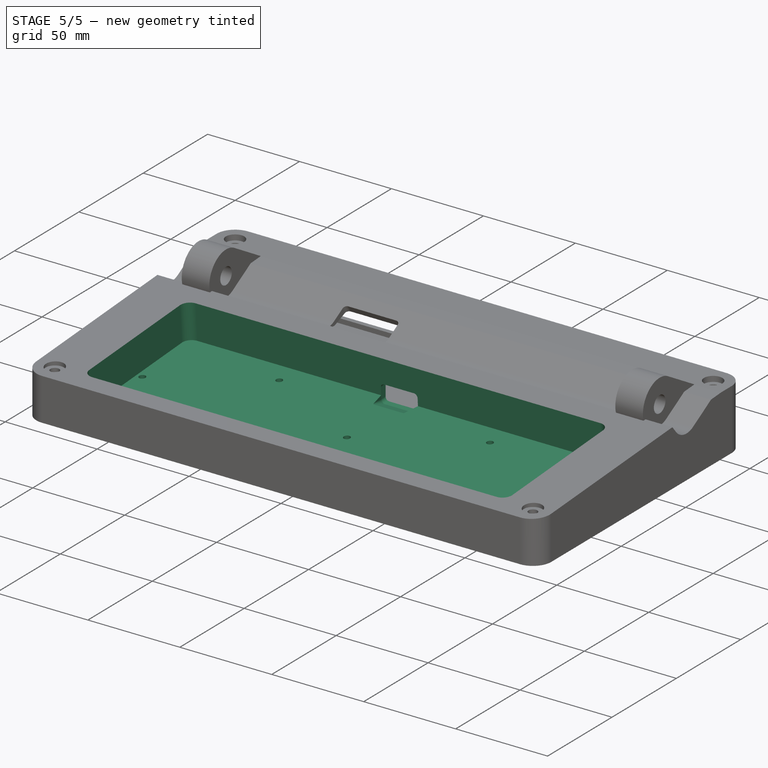
[diagram: stage 5 of 5 — iso view after this stage's code; geometry added in this stage tinted green]
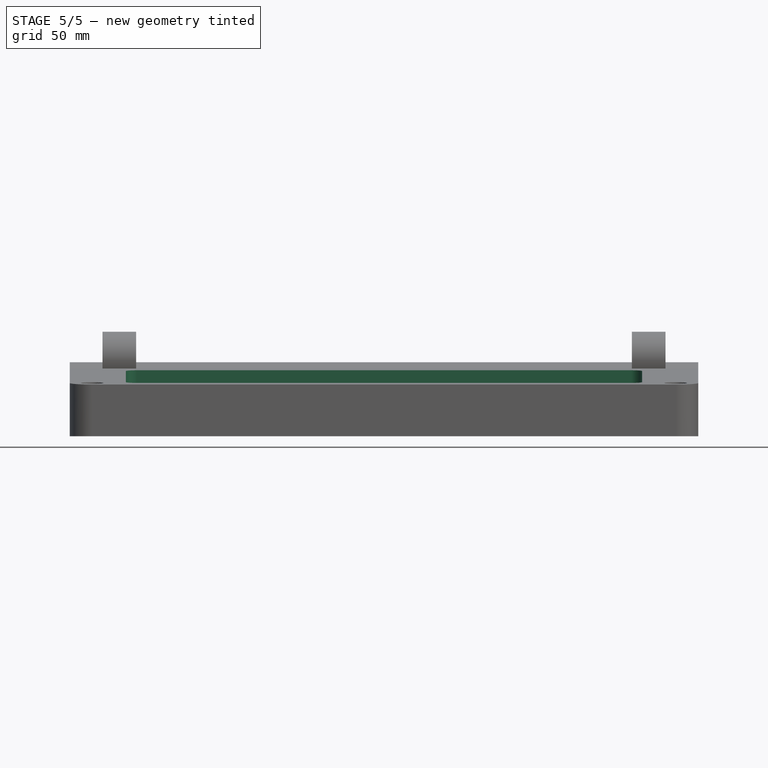
[diagram: stage 5 of 5 — front view after this stage's code; geometry added in this stage tinted green]
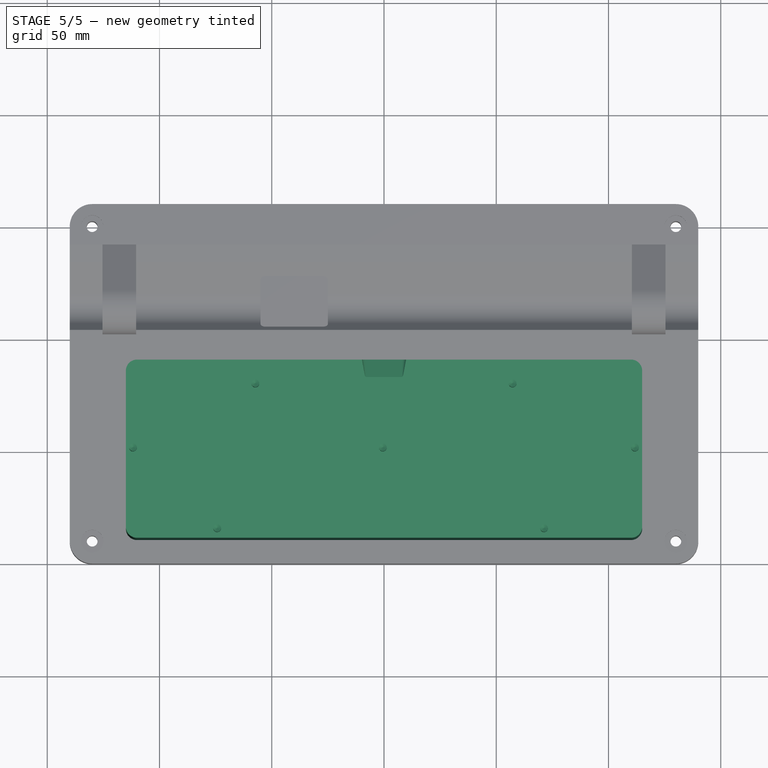
[diagram: stage 5 of 5 — top view after this stage's code; geometry added in this stage tinted green]
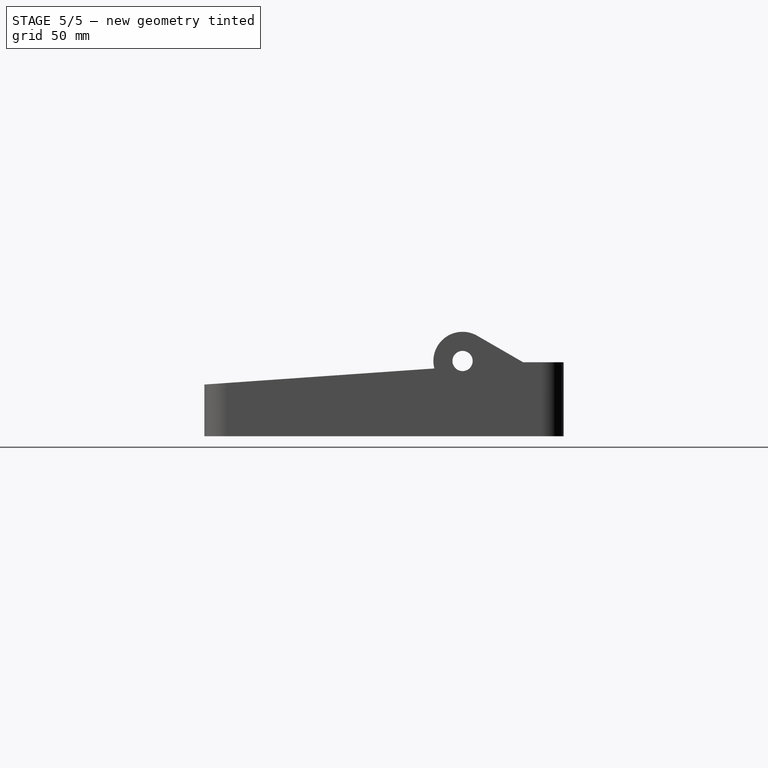
[diagram: stage 5 of 5 — right view after this stage's code; geometry added in this stage tinted green]
FEATURE [PartDesign::Plane] DatumPlane
  AttachmentSupport = -> [Boolean]
  Length = 60.3311
  MapMode = 5
  Placement = pos=(0,-2.0876,29.854) rot=(1,0,0;0.069813rad)
  ResizeMode = 0
  Width = 63.6971
FEATURE [Sketcher::SketchObject] Sketch018  label="Sketch019"
  ArcFitTolerance = 1e-06
  AttachmentSupport = -> [DatumPlane]
  ExternalGeometry = -> [Boolean]
  FullyConstrained = true
  MakeInternals = false
  MapMode = 5
  Placement = pos=(0,-2.0876,29.854) rot=(1,0,0;0.069813rad)
  expr: Constraints[29] = <<Vars>>.nut_inserts_m2
  sketch-geometry (17):
    g0: LineSegment StartX=-110 StartY=-87.6515 StartZ=0 EndX=110 EndY=-87.6515 EndZ=0
    g1: LineSegment StartX=115 StartY=-82.6515 StartZ=0 EndX=115 EndY=-12.1515 EndZ=0
    g2: LineSegment StartX=110 StartY=-7.1515 StartZ=0 EndX=-110 EndY=-7.1515 EndZ=0
    g3: LineSegment StartX=-115 StartY=-12.1515 StartZ=0 EndX=-115 EndY=-82.6515 EndZ=0
    g4: ArcOfCircle CenterX=-110 CenterY=-82.6515 CenterZ=0 NormalX=0 NormalY=0 NormalZ=1 AngleXU=0 Radius=5 StartAngle=3.14159 EndAngle=4.71239
    g5: ArcOfCircle CenterX=110 CenterY=-82.6515 CenterZ=0 NormalX=0 NormalY=0 NormalZ=1 AngleXU=0 Radius=5 StartAngle=4.71239 EndAngle=6.28319
    g6: ArcOfCircle CenterX=110 CenterY=-12.1515 CenterZ=0 NormalX=0 NormalY=0 NormalZ=1 AngleXU=0 Radius=5 StartAngle=1e-16 EndAngle=1.5708
    g7: ArcOfCircle CenterX=-110 CenterY=-12.1515 CenterZ=0 NormalX=0 NormalY=0 NormalZ=1 AngleXU=0 Radius=5 StartAngle=1.5708 EndAngle=3.14159
    g8: GeomPoint [constr] X=115 Y=-7.1515 Z=0
    g9: GeomPoint [constr] X=0 Y=-47.4015 Z=0
    g10: Circle CenterX=-111.8 CenterY=-47.4015 CenterZ=0 NormalX=0 NormalY=0 NormalZ=1 AngleXU=0 Radius=1.75
    g11: Circle CenterX=-57.3 CenterY=-18.8215 CenterZ=0 NormalX=0 NormalY=0 NormalZ=1 AngleXU=0 Radius=1.75
    g12: Circle CenterX=-0.5 CenterY=-47.4015 CenterZ=0 NormalX=0 NormalY=0 NormalZ=1 AngleXU=0 Radius=1.75
    g13: Circle CenterX=57.3 CenterY=-18.8215 CenterZ=0 NormalX=0 NormalY=0 NormalZ=1 AngleXU=0 Radius=1.75
    g14: Circle CenterX=111.8 CenterY=-47.4015 CenterZ=0 NormalX=0 NormalY=0 NormalZ=1 AngleXU=0 Radius=1.75
    g15: Circle CenterX=71.3 CenterY=-83.4015 CenterZ=0 NormalX=0 NormalY=0 NormalZ=1 AngleXU=0 Radius=1.75
    g16: Circle CenterX=-74.3 CenterY=-83.4015 CenterZ=0 NormalX=0 NormalY=0 NormalZ=1 AngleXU=0 Radius=1.75
  constraints (45):
    c: Tangent(g0,g4) = -1.5708
    c: Tangent(g0,g5) = -1.5708
    c: Tangent(g1,g5) = -1.5708
    c: Tangent(g1,g6) = -1.5708
    c: Tangent(g2,g6) = -1.5708
    c: Tangent(g2,g7) = -1.5708
    c: Tangent(g3,g7) = -1.5708
    c: Tangent(g3,g4) = -1.5708
    c: Horizontal(g0)
    c: Horizontal(g2)
    c: Vertical(g1)
    c: Vertical(g3)
    c: Equal(g4,g5)
    c: Equal(g5,g6)
    c: Equal(g6,g7)
    c: Symmetric(g2,g0,g9)
    c: PointOnObject(g8,g1)
    c: PointOnObject(g8,g2)
    c: Distance(g1,g3) = 230
    c: Distance(g0,g2) = 80.5
    c: Radius(g5) = 5
    c: PointOnObject(g9,g-2)
    c: DistanceY(g-3,g0) = 10.5
    c: Equal(g16,g10)
    c: Equal(g10,g11)
    c: Equal(g11,g12)
    c: Equal(g12,g13)
    c: Equal(g13,g15)
    c: Equal(g15,g14)
    c: Diameter(g12) = 3.5
    c: Horizontal(g9,g12)
    c: DistanceX(g12,g9) = 0.5
    c: Horizontal(g10,g12)
    c: DistanceX(g11,g9) = 57.3
    c: Symmetric(g11,g13,g-2)
    c: DistanceY(g9,g11) = 28.58
    c: Symmetric(g10,g14,g9)
    c: DistanceX(g10,g9) = 111.8
    c: DistanceX(g10,g14) = 223.6
    c: DistanceX(g16,g9) = 74.3
    c: DistanceX(g16,g15) = 145.6
    c: DistanceY(g16,g9) = 36
    c: DistanceX(g11,g13) = 114.6
    c: DistanceX(g9,g15) = 71.3
    c: Horizontal(g16,g15)
FEATURE [PartDesign::SubShapeBinder] Binder019
  BindCopyOnChange = 0
  BindMode = 0
  ClaimChildren = false
  Context = -> Body [Binder019.]
  Fuse = false
  MakeFace = true
  OffsetFill = false
  OffsetIntersection = false
  OffsetJoinType = 0
  OffsetOpenResult = false
  PartialLoad = false
  Refine = true
  Relative = true
  Support = -> [Sketch018[Edge1,Edge8,Edge7,Edge6,Edge5,Edge4,Edge3,Edge2]]
  _Version = 2
FEATURE [PartDesign::Pocket] Pocket005
  BaseFeature = -> Boolean
  Direction = (0,0.0697565,-0.997564)
  Length = 19
  Length2 = 5
  Profile = -> Binder019
  Refine = true
  Suppressed = false
  Type = 0
FEATURE [Sketcher::SketchObject] Sketch019  label="Sketch020"
  ArcFitTolerance = 1e-06
  AttachmentSupport = -> [Pocket005]
  ExternalGeometry = -> [Sketch018]
  FullyConstrained = true
  MakeInternals = false
  MapMode = 5
  Placement = pos=(0,-0.762224,10.9003) rot=(1,0,0;0.069813rad)
  sketch-geometry (7):
    g0: Circle CenterX=-111.8 CenterY=-47.4015 CenterZ=0 NormalX=0 NormalY=0 NormalZ=1 AngleXU=0 Radius=1.75
    g1: Circle CenterX=-74.3 CenterY=-83.4015 CenterZ=0 NormalX=0 NormalY=0 NormalZ=1 AngleXU=0 Radius=1.75
    g2: Circle CenterX=-0.5 CenterY=-47.4015 CenterZ=0 NormalX=0 NormalY=0 NormalZ=1 AngleXU=0 Radius=1.75
    g3: Circle CenterX=-57.3 CenterY=-18.8215 CenterZ=0 NormalX=0 NormalY=0 NormalZ=1 AngleXU=0 Radius=1.75
    g4: Circle CenterX=57.3 CenterY=-18.8215 CenterZ=0 NormalX=0 NormalY=0 NormalZ=1 AngleXU=0 Radius=1.75
    g5: Circle CenterX=111.8 CenterY=-47.4015 CenterZ=0 NormalX=0 NormalY=0 NormalZ=1 AngleXU=0 Radius=1.75
    g6: Circle CenterX=71.3 CenterY=-83.4015 CenterZ=0 NormalX=0 NormalY=0 NormalZ=1 AngleXU=0 Radius=1.75
  constraints (14):
    c: Coincident(g0,g-3)
    c: Equal(g0,g-3)
    c: Coincident(g1,g-6)
    c: Equal(g1,g-6)
    c: Coincident(g2,g-5)
    c: Equal(g2,g-5)
    c: Coincident(g3,g-4)
    c: Equal(g3,g-4)
    c: Coincident(g4,g-7)
    c: Equal(g4,g-7)
    c: Coincident(g5,g-9)
    c: Equal(g5,g-9)
    c: Coincident(g6,g-8)
    c: Equal(g6,g-8)
FEATURE [PartDesign::Hole] Hole
  BaseFeature = -> Pocket005
  CustomThreadClearance = 0
  Depth = 3
  DepthType = 0
  Diameter = 3.5
  DrillForDepth = false
  DrillPoint = 1
  DrillPointAngle = 118
  HoleCutCountersinkAngle = 90
  HoleCutCustomValues = false
  HoleCutDepth = 0
  HoleCutDiameter = 6.1
  HoleCutType = 0
  ModelThread = false
  Profile = -> Sketch019
  Refine = true
  Suppressed = false
  Tapered = false
  TaperedAngle = 90
  ThreadClass = 0
  ThreadDepth = 3
  ThreadDepthType = 0
  ThreadDirection = 0
  ThreadFit = 0
  ThreadSize = 0
  ThreadType = 0
  Threaded = false
  UseCustomThreadClearance = false
  expr: Diameter = <<Vars>>.nut_inserts_m2
FEATURE [Sketcher::SketchObject] Sketch020  label="Sketch021"
  ArcFitTolerance = 1e-06
  AttachmentSupport = -> [Hole]
  ExternalGeometry = -> [Hole]
  FullyConstrained = true
  MakeInternals = false
  MapMode = 5
  Placement = pos=(0,-7.13407,-0.498863) rot=(1,0,0;1.64061rad)
  sketch-geometry (10):
    g0: LineSegment StartX=-8 StartY=6.92692 StartZ=0 EndX=8 EndY=6.92692 EndZ=0
    g1: LineSegment StartX=10 StartY=8.92692 StartZ=0 EndX=10 EndY=14.9269 EndZ=0
    g2: LineSegment StartX=8 StartY=16.9269 StartZ=0 EndX=-8 EndY=16.9269 EndZ=0
    g3: LineSegment StartX=-10 StartY=14.9269 StartZ=0 EndX=-10 EndY=8.92692 EndZ=0
    g4: ArcOfCircle CenterX=-8 CenterY=8.92692 CenterZ=0 NormalX=0 NormalY=0 NormalZ=1 AngleXU=0 Radius=2 StartAngle=3.14159 EndAngle=4.71239
    g5: ArcOfCircle CenterX=8 CenterY=8.92692 CenterZ=0 NormalX=0 NormalY=0 NormalZ=1 AngleXU=0 Radius=2 StartAngle=4.71239 EndAngle=6.28319
    g6: ArcOfCircle CenterX=8 CenterY=14.9269 CenterZ=0 NormalX=0 NormalY=0 NormalZ=1 AngleXU=0 Radius=2 StartAngle=0 EndAngle=1.5708
    g7: ArcOfCircle CenterX=-8 CenterY=14.9269 CenterZ=0 NormalX=0 NormalY=0 NormalZ=1 AngleXU=0 Radius=2 StartAngle=1.5708 EndAngle=3.14159
    g8: GeomPoint [constr] X=10 Y=16.9269 Z=0
    g9: GeomPoint [constr] X=0 Y=11.9269 Z=0
  constraints (23):
    c: Tangent(g0,g4) = -1.5708
    c: Tangent(g0,g5) = -1.5708
    c: Tangent(g1,g5) = -1.5708
    c: Tangent(g1,g6) = -1.5708
    c: Tangent(g2,g6) = -1.5708
    c: Tangent(g2,g7) = -1.5708
    c: Tangent(g3,g7) = -1.5708
    c: Tangent(g3,g4) = -1.5708
    c: Horizontal(g0)
    c: Horizontal(g2)
    c: Vertical(g1)
    c: Vertical(g3)
    c: Equal(g4,g5)
    c: Equal(g5,g6)
    c: Equal(g6,g7)
    c: Symmetric(g2,g0,g9)
    c: PointOnObject(g8,g1)
    c: PointOnObject(g8,g2)
    c: Distance(g1,g3) = 20
    c: Distance(g0,g2) = 10
    c: Radius(g5) = 2
    c: PointOnObject(g9,g-2)
    c: DistanceY(g0,g-3) = 4
FEATURE [PartDesign::SubShapeBinder] Binder020
  BindCopyOnChange = 0
  BindMode = 0
  ClaimChildren = false
  Context = -> Body [Binder020.]
  Fuse = false
  MakeFace = true
  OffsetFill = false
  OffsetIntersection = false
  OffsetJoinType = 0
  OffsetOpenResult = false
  PartialLoad = false
  Refine = true
  Relative = true
  Support = -> [Sketch020]
  _Version = 2
FEATURE [PartDesign::Pocket] Pocket006
  BaseFeature = -> Hole
  Direction = (0,-0.997564,-0.0697565)
  Length = 10
  Length2 = 5
  Profile = -> Binder020
  Refine = true
  Reversed = true
  Suppressed = false
  Type = 0
FEATURE [PartDesign::Pocket] Pocket007
  BaseFeature = -> Pocket006
  Direction = (0,-1,0.2)
  Length = 10
  Length2 = 5
  Profile = -> Binder020
  Refine = true
  Suppressed = false
  TaperAngle = -10
  Type = 0
  UseCustomVector = true
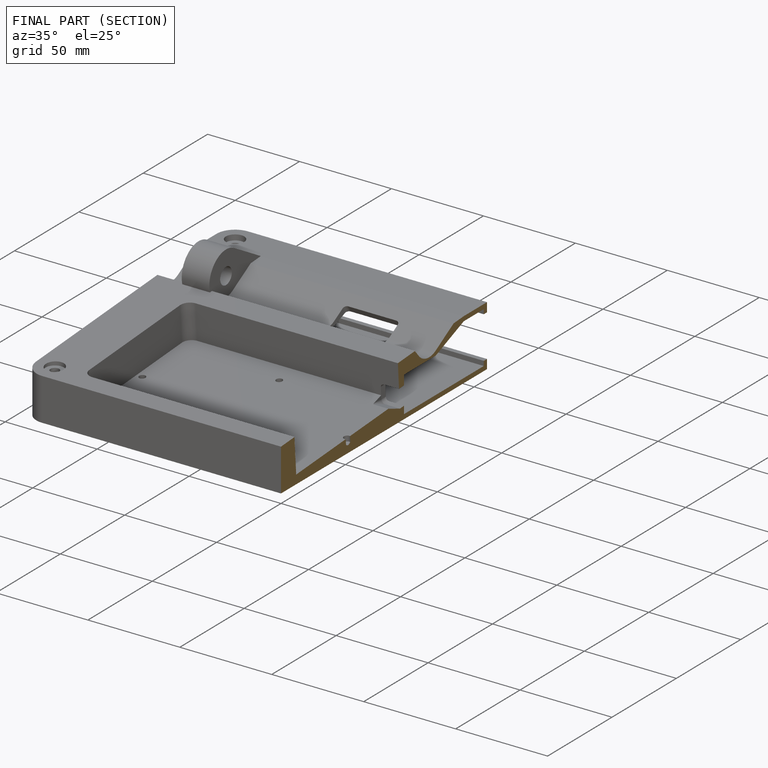
[diagram: finished part — half-section view (interior)]
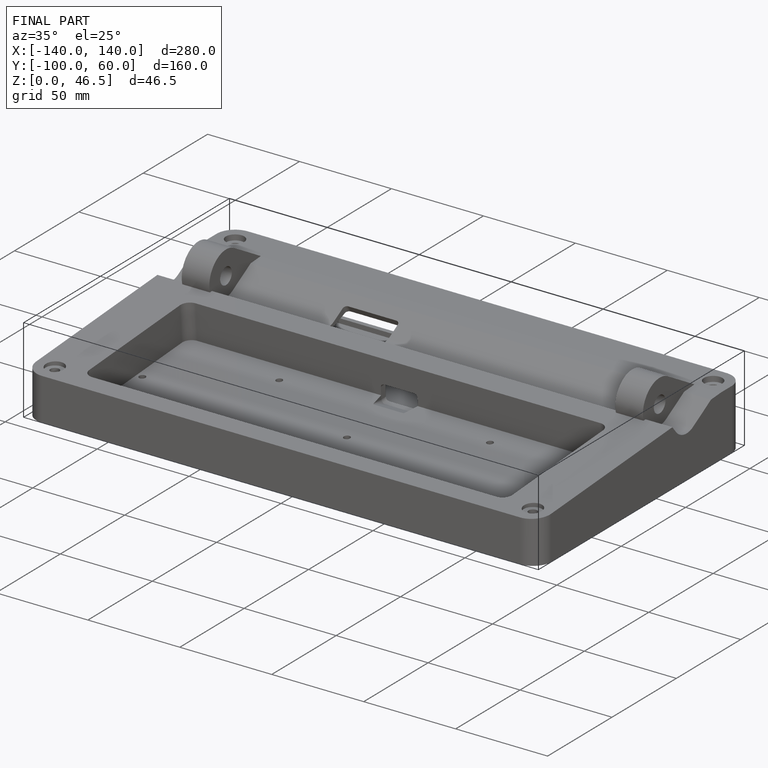
[diagram: finished part — iso view with bounding-box wireframe]
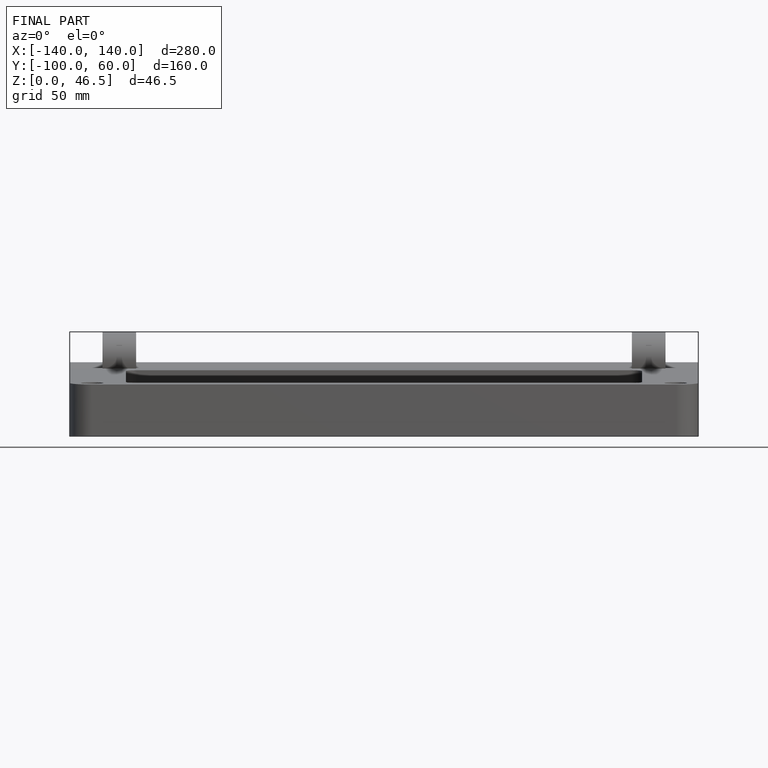
[diagram: finished part — front view with bounding-box wireframe]
